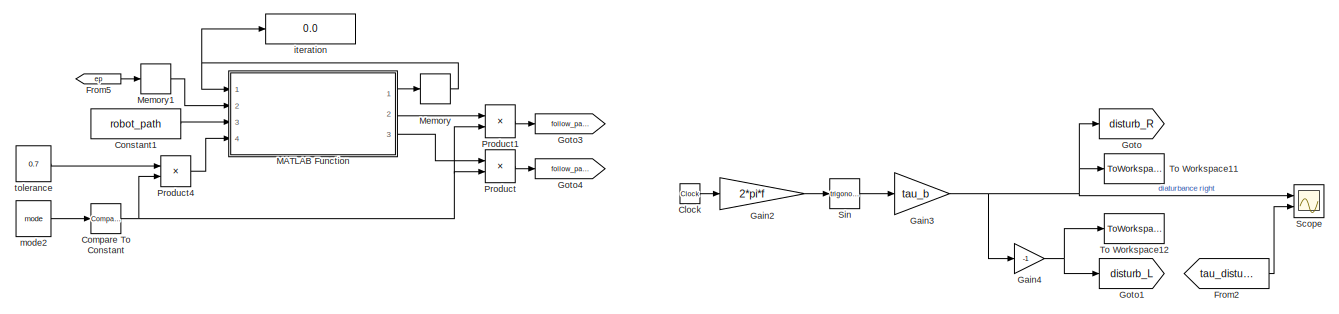
[diagram: root canvas - part 1/3, top center region]
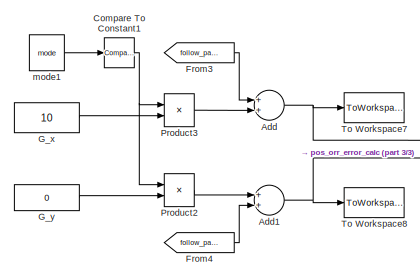
[diagram: root canvas - part 2/3, middle left region]
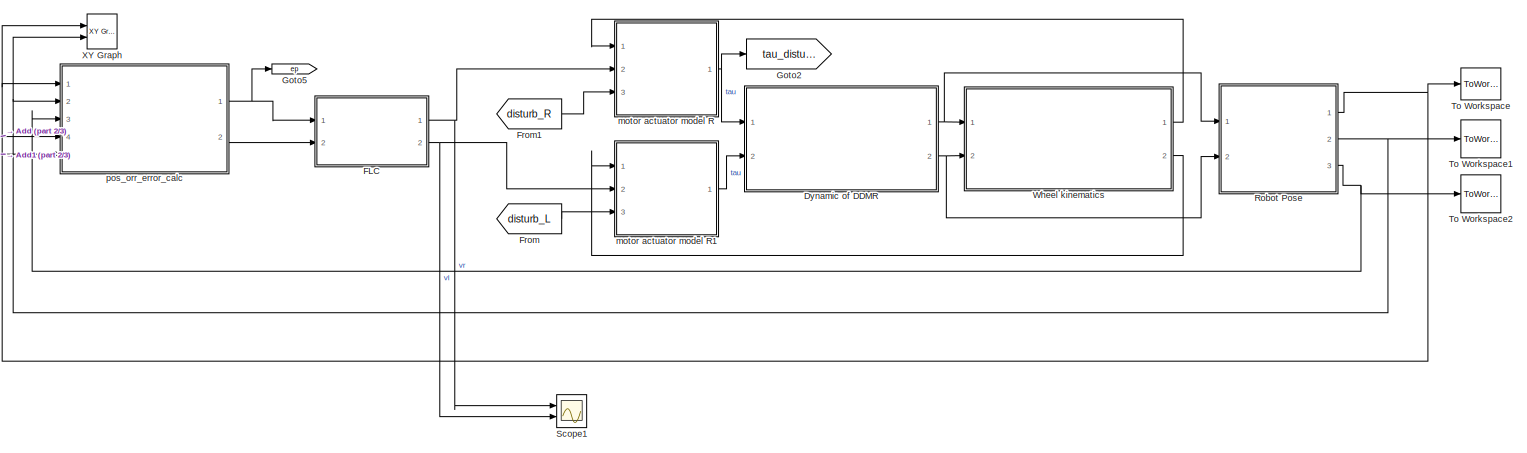
[diagram: root canvas - part 3/3, full width, bottom band]
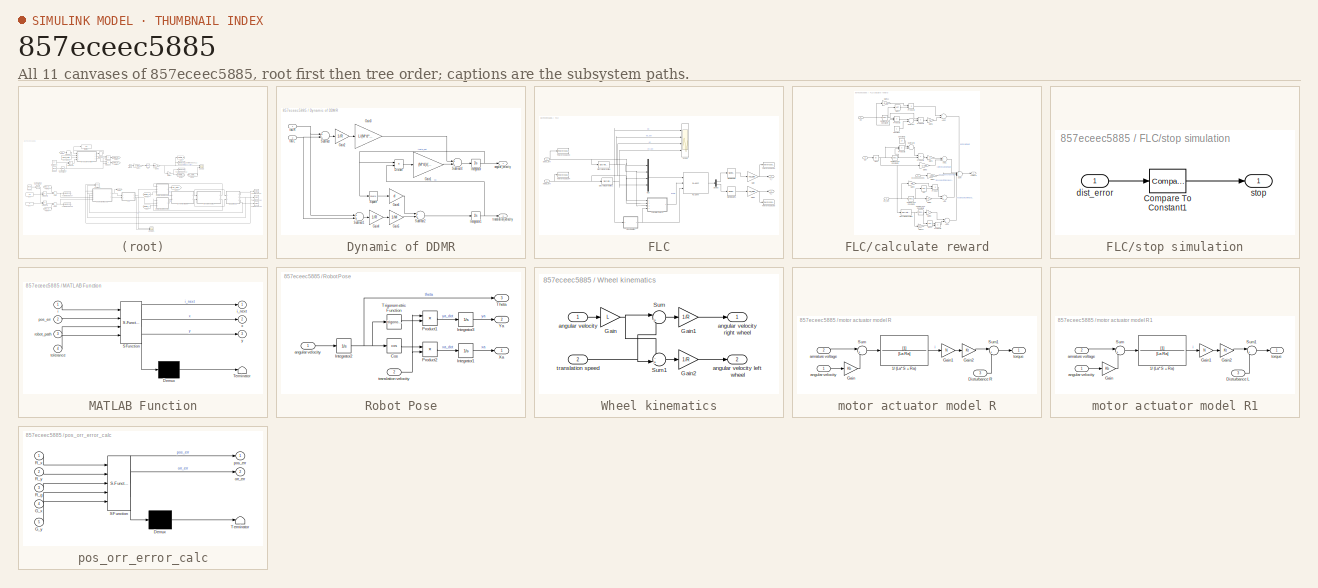
[diagram: thumbnail index - all 11 canvases of the model, root first then tree order]
MODEL slx_857eceec5885
KIND model
CONFIG AbsTol = auto
CONFIG EnableMultiTasking = off
CONFIG FixedStep = auto
CONFIG MaxStep = auto
CONFIG MinStep = auto
CONFIG RelTol = 1e-3
CONFIG SampleTimeConstraint = Unconstrained
CONFIG Solver = VariableStepAuto
CONFIG SolverName = VariableStepAuto
CONFIG StartTime = 0.0
CONFIG StopTime = TF
BLOCK [Sum] Add
  InputSameDT = off
  OutDataTypeStr = Inherit: Inherit via internal rule
  Ports = [2, 1]
  SaturateOnIntegerOverflow = off
BLOCK [Sum] Add1
  InputSameDT = off
  OutDataTypeStr = Inherit: Inherit via internal rule
  Ports = [2, 1]
  SaturateOnIntegerOverflow = off
BLOCK [Clock] Clock
BLOCK [Reference] Compare To Constant  REF=simulink/Logic and Bit
Operations/Compare
To Constant
  Ports = [1, 1]
  SourceBlock = simulink/Logic and Bit\nOperations/Compare\nTo Constant
  SourceProductBaseCode = SL
  SourceProductName = Simulink
  SourceType = Compare To Constant
BLOCK [Reference] Compare To Constant1  REF=simulink/Logic and Bit
Operations/Compare
To Constant
  Ports = [1, 1]
  SourceBlock = simulink/Logic and Bit\nOperations/Compare\nTo Constant
  SourceProductBaseCode = SL
  SourceProductName = Simulink
  SourceType = Compare To Constant
BLOCK [Constant] Constant1
  Value = robot_path
BLOCK [SubSystem] Dynamic of DDMR
  Ports = [2, 2]
  RequestExecContextInheritance = off
BLOCK [Product] Dynamic of DDMR/Divide7
  InputSameDT = off
  Inputs = **
  OutDataTypeStr = Inherit: Inherit via internal rule
  Ports = [2, 1]
  RndMeth = Floor
  SaturateOnIntegerOverflow = off
BLOCK [Gain] Dynamic of DDMR/Gain1
  Gain = (M*d)/(M*d*d+J)
  OutDataTypeStr = Inherit: Inherit via internal rule
  ParamDataTypeStr = Inherit: Inherit via internal rule
  SaturateOnIntegerOverflow = off
BLOCK [Gain] Dynamic of DDMR/Gain2
  Gain = 1/R
  OutDataTypeStr = Inherit: Inherit via internal rule
  ParamDataTypeStr = Inherit: Inherit via internal rule
  SaturateOnIntegerOverflow = off
BLOCK [Gain] Dynamic of DDMR/Gain3
  Gain = L/(M*d*d+J)
  OutDataTypeStr = Inherit: Inherit via internal rule
  ParamDataTypeStr = Inherit: Inherit via internal rule
  SaturateOnIntegerOverflow = off
BLOCK [Gain] Dynamic of DDMR/Gain4
  Gain = 1/R
  OutDataTypeStr = Inherit: Inherit via internal rule
  ParamDataTypeStr = Inherit: Inherit via internal rule
  SaturateOnIntegerOverflow = off
BLOCK [Gain] Dynamic of DDMR/Gain5
  Gain = 1/M
  OutDataTypeStr = Inherit: Inherit via internal rule
  ParamDataTypeStr = Inherit: Inherit via internal rule
  SaturateOnIntegerOverflow = off
BLOCK [Gain] Dynamic of DDMR/Gain6
  Gain = d
  OutDataTypeStr = Inherit: Inherit via internal rule
  ParamDataTypeStr = Inherit: Inherit via internal rule
  SaturateOnIntegerOverflow = off
BLOCK [Integrator] Dynamic of DDMR/Integrator
  Ports = [1, 1]
BLOCK [Integrator] Dynamic of DDMR/Integrator1
  Ports = [1, 1]
BLOCK [Math] Dynamic of DDMR/Square
  Operator = square
  Ports = [1, 1]
BLOCK [Sum] Dynamic of DDMR/Subtract
  InputSameDT = off
  Inputs = +-
  OutDataTypeStr = Inherit: Inherit via internal rule
  Ports = [2, 1]
  SaturateOnIntegerOverflow = off
BLOCK [Sum] Dynamic of DDMR/Subtract1
  InputSameDT = off
  OutDataTypeStr = Inherit: Inherit via internal rule
  Ports = [2, 1]
  SaturateOnIntegerOverflow = off
BLOCK [Sum] Dynamic of DDMR/Subtract2
  InputSameDT = off
  OutDataTypeStr = Inherit: Inherit via internal rule
  Ports = [2, 1]
  SaturateOnIntegerOverflow = off
BLOCK [Sum] Dynamic of DDMR/Subtract4
  InputSameDT = off
  Inputs = +-
  OutDataTypeStr = Inherit: Inherit via internal rule
  Ports = [2, 1]
  SaturateOnIntegerOverflow = off
BLOCK [Outport] Dynamic of DDMR/angular_velocity
  IconDisplay = Port number
BLOCK [Inport] Dynamic of DDMR/tau L
  IconDisplay = Port number
  Port = 2
BLOCK [Inport] Dynamic of DDMR/tau R
  IconDisplay = Port number
BLOCK [Outport] Dynamic of DDMR/translation_velocity
  IconDisplay = Port number
  Port = 2
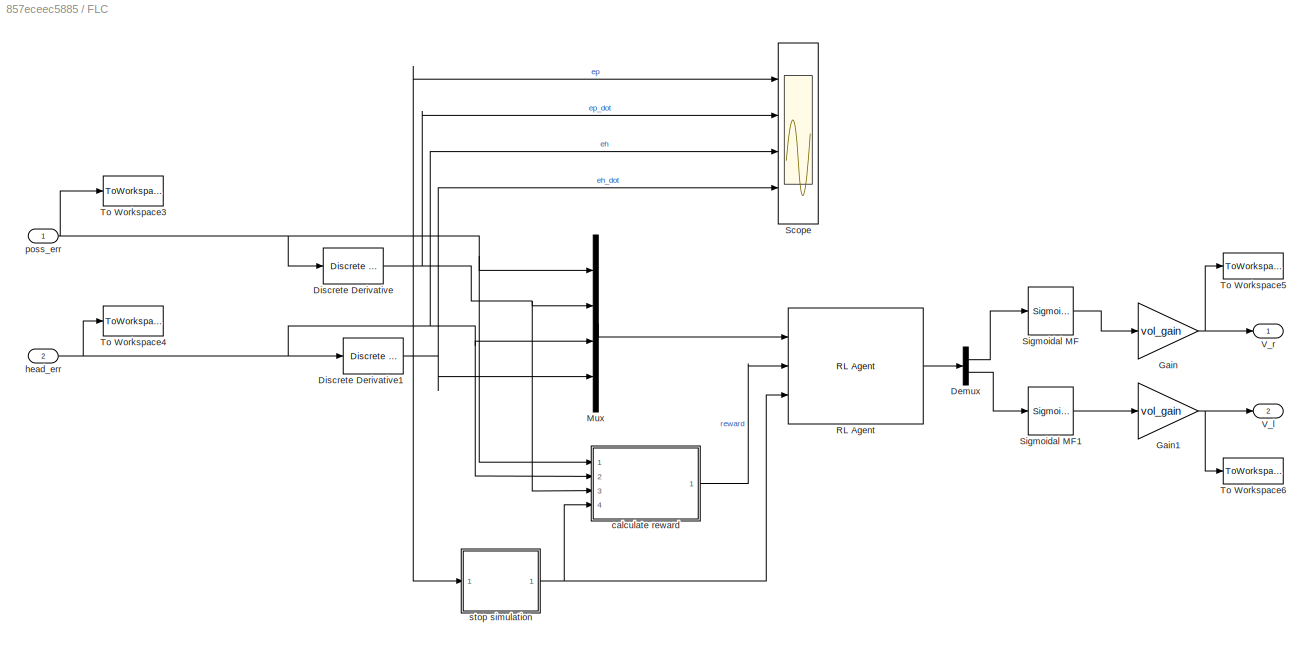
BLOCK [SubSystem] FLC
  Ports = [2, 2]
  RequestExecContextInheritance = off
BLOCK [Demux] FLC/Demux
  DisplayOption = bar
  Outputs = 2
  Ports = [1, 2]
BLOCK [Reference] FLC/Discrete Derivative  REF=simulink/Discrete/Discrete Derivative
  Ports = [1, 1]
  SourceBlock = simulink/Discrete/Discrete Derivative
  SourceProductBaseCode = SL
  SourceProductName = Simulink
  SourceType = Discrete Derivative
BLOCK [Reference] FLC/Discrete Derivative1  REF=simulink/Discrete/Discrete Derivative
  Ports = [1, 1]
  SourceBlock = simulink/Discrete/Discrete Derivative
  SourceProductBaseCode = SL
  SourceProductName = Simulink
  SourceType = Discrete Derivative
BLOCK [Gain] FLC/Gain
  Gain = vol_gain
  OutDataTypeStr = Inherit: Inherit via internal rule
  ParamDataTypeStr = Inherit: Inherit via internal rule
  SaturateOnIntegerOverflow = off
BLOCK [Gain] FLC/Gain1
  Gain = vol_gain
  OutDataTypeStr = Inherit: Inherit via internal rule
  ParamDataTypeStr = Inherit: Inherit via internal rule
  SaturateOnIntegerOverflow = off
BLOCK [Mux] FLC/Mux
  DisplayOption = bar
  Ports = [4, 1]
BLOCK [Reference] FLC/RL Agent  REF=rllib/RL Agent
  Ports = [3, 1]
  SourceBlock = rllib/RL Agent
  SourceProductBaseCode = RL
  SourceProductName = Reinforcement Learning Toolbox
  SourceType = RL Agent
BLOCK [Scope] FLC/Scope
  Floating = off
  NumInputPorts = 4
  Ports = [4]
  ScopeSpecificationString = Simulink.scopes.TimeScopeBlockCfg('CurrentConfiguration', extmgr.ConfigurationSet(extmgr.Configuration('Core','General UI',true),extmgr.Configuration('Core','Source UI',true),extmgr.Configuration('Sources','WiredSimulink',true,'DataLoggingVariableName','ScopeData1'),extmgr.Configuration('Visuals','Time Domain',true,'SerializedDisplays',{struct('MinYLimReal','-0.06885','MaxYLimReal','5.56321','YLab...<+3434ch>
BLOCK [Reference] FLC/Sigmoidal MF  REF=fuzblock/Membership   (lib defined in mdl_858b3b3e7478)
Functions/Sigmoidal MF
  Ports = [1, 1]
  SourceBlock = fuzblock/Membership \nFunctions/Sigmoidal MF
  SourceProductBaseCode = FL
  SourceProductName = Fuzzy Logic Toolbox
  SourceType = sigmf
BLOCK [Reference] FLC/Sigmoidal MF1  REF=fuzblock/Membership   (lib defined in mdl_858b3b3e7478)
Functions/Sigmoidal MF
  Ports = [1, 1]
  SourceBlock = fuzblock/Membership \nFunctions/Sigmoidal MF
  SourceProductBaseCode = FL
  SourceProductName = Fuzzy Logic Toolbox
  SourceType = sigmf
BLOCK [ToWorkspace] FLC/To Workspace3
  FixptAsFi = on
  MaxDataPoints = inf
  Ports = [1]
  SampleTime = -1
  VariableName = poser
BLOCK [ToWorkspace] FLC/To Workspace4
  FixptAsFi = on
  MaxDataPoints = inf
  Ports = [1]
  SampleTime = -1
  VariableName = orrer
BLOCK [ToWorkspace] FLC/To Workspace5
  FixptAsFi = on
  MaxDataPoints = inf
  Ports = [1]
  SampleTime = -1
  SaveFormat = Structure With Time
  VariableName = vr_flc
BLOCK [ToWorkspace] FLC/To Workspace6
  FixptAsFi = on
  MaxDataPoints = inf
  Ports = [1]
  SampleTime = -1
  SaveFormat = Structure With Time
  VariableName = vl_flc
BLOCK [Outport] FLC/V_l
  IconDisplay = Port number
  Port = 2
BLOCK [Outport] FLC/V_r
  IconDisplay = Port number
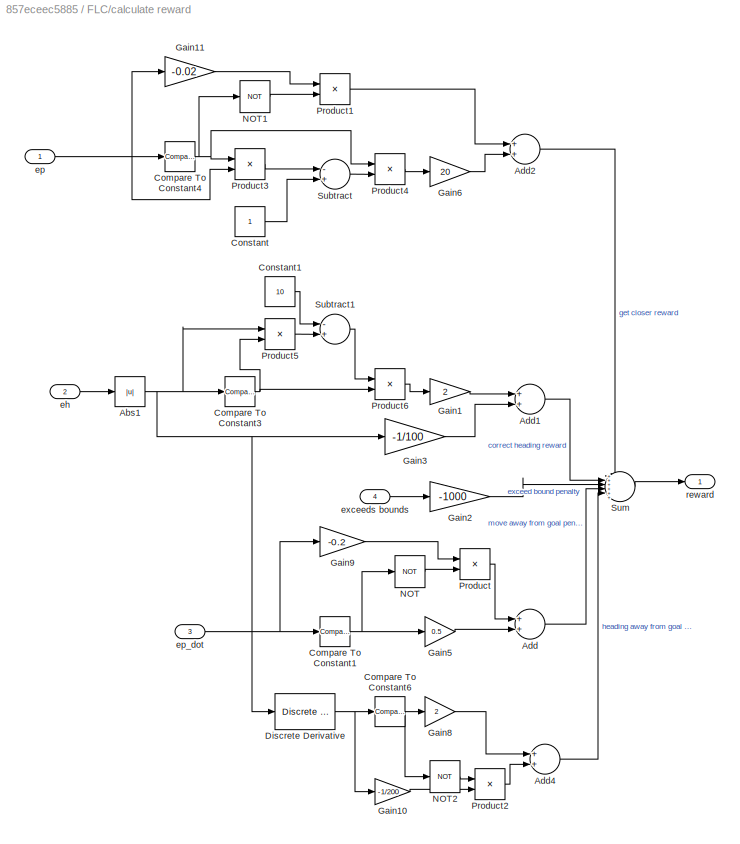
BLOCK [SubSystem] FLC/calculate reward
  Ports = [4, 1]
  RequestExecContextInheritance = off
BLOCK [Abs] FLC/calculate reward/Abs1
  SaturateOnIntegerOverflow = off
BLOCK [Sum] FLC/calculate reward/Add
  InputSameDT = off
  OutDataTypeStr = Inherit: Inherit via internal rule
  Ports = [2, 1]
  SaturateOnIntegerOverflow = off
BLOCK [Sum] FLC/calculate reward/Add1
  InputSameDT = off
  OutDataTypeStr = Inherit: Inherit via internal rule
  Ports = [2, 1]
  SaturateOnIntegerOverflow = off
BLOCK [Sum] FLC/calculate reward/Add2
  InputSameDT = off
  OutDataTypeStr = Inherit: Inherit via internal rule
  Ports = [2, 1]
  SaturateOnIntegerOverflow = off
BLOCK [Sum] FLC/calculate reward/Add4
  InputSameDT = off
  OutDataTypeStr = Inherit: Inherit via internal rule
  Ports = [2, 1]
  SaturateOnIntegerOverflow = off
BLOCK [Reference] FLC/calculate reward/Compare To Constant1  REF=simulink/Logic and Bit
Operations/Compare
To Constant
  Ports = [1, 1]
  SourceBlock = simulink/Logic and Bit\nOperations/Compare\nTo Constant
  SourceProductBaseCode = SL
  SourceProductName = Simulink
  SourceType = Compare To Constant
BLOCK [Reference] FLC/calculate reward/Compare To Constant3  REF=simulink/Logic and Bit
Operations/Compare
To Constant
  Ports = [1, 1]
  SourceBlock = simulink/Logic and Bit\nOperations/Compare\nTo Constant
  SourceProductBaseCode = SL
  SourceProductName = Simulink
  SourceType = Compare To Constant
BLOCK [Reference] FLC/calculate reward/Compare To Constant4  REF=simulink/Logic and Bit
Operations/Compare
To Constant
  Ports = [1, 1]
  SourceBlock = simulink/Logic and Bit\nOperations/Compare\nTo Constant
  SourceProductBaseCode = SL
  SourceProductName = Simulink
  SourceType = Compare To Constant
BLOCK [Reference] FLC/calculate reward/Compare To Constant6  REF=simulink/Logic and Bit
Operations/Compare
To Constant
  Ports = [1, 1]
  SourceBlock = simulink/Logic and Bit\nOperations/Compare\nTo Constant
  SourceProductBaseCode = SL
  SourceProductName = Simulink
  SourceType = Compare To Constant
BLOCK [Constant] FLC/calculate reward/Constant
BLOCK [Constant] FLC/calculate reward/Constant1
  Value = 10
BLOCK [Reference] FLC/calculate reward/Discrete Derivative  REF=simulink/Quick Insert/Discrete/Discrete Derivative
  Ports = [1, 1]
  SourceBlock = simulink/Quick Insert/Discrete/Discrete Derivative
  SourceProductBaseCode = SL
  SourceProductName = Simulink
  SourceType = Discrete Derivative
BLOCK [Gain] FLC/calculate reward/Gain1
  Gain = 2
  OutDataTypeStr = Inherit: Inherit via internal rule
  ParamDataTypeStr = Inherit: Inherit via internal rule
  SaturateOnIntegerOverflow = off
BLOCK [Gain] FLC/calculate reward/Gain10
  Gain = -1/200
  OutDataTypeStr = Inherit: Inherit via internal rule
  ParamDataTypeStr = Inherit: Inherit via internal rule
  SaturateOnIntegerOverflow = off
BLOCK [Gain] FLC/calculate reward/Gain11
  Gain = -0.02
  OutDataTypeStr = Inherit: Inherit via internal rule
  ParamDataTypeStr = Inherit: Inherit via internal rule
  SaturateOnIntegerOverflow = off
BLOCK [Gain] FLC/calculate reward/Gain2
  Gain = -1000
  OutDataTypeStr = Inherit: Inherit via internal rule
  ParamDataTypeStr = Inherit: Inherit via internal rule
  SaturateOnIntegerOverflow = off
BLOCK [Gain] FLC/calculate reward/Gain3
  Gain = -1/100
  OutDataTypeStr = Inherit: Inherit via internal rule
  ParamDataTypeStr = Inherit: Inherit via internal rule
  SaturateOnIntegerOverflow = off
BLOCK [Gain] FLC/calculate reward/Gain5
  Gain = 0.5
  OutDataTypeStr = Inherit: Inherit via internal rule
  ParamDataTypeStr = Inherit: Inherit via internal rule
  SaturateOnIntegerOverflow = off
BLOCK [Gain] FLC/calculate reward/Gain6
  Gain = 20
  OutDataTypeStr = Inherit: Inherit via internal rule
  ParamDataTypeStr = Inherit: Inherit via internal rule
  SaturateOnIntegerOverflow = off
BLOCK [Gain] FLC/calculate reward/Gain8
  Gain = 2
  OutDataTypeStr = Inherit: Inherit via internal rule
  ParamDataTypeStr = Inherit: Inherit via internal rule
  SaturateOnIntegerOverflow = off
BLOCK [Gain] FLC/calculate reward/Gain9
  Gain = -0.2
  OutDataTypeStr = Inherit: Inherit via internal rule
  ParamDataTypeStr = Inherit: Inherit via internal rule
  SaturateOnIntegerOverflow = off
BLOCK [Logic] FLC/calculate reward/NOT
  AllPortsSameDT = off
  IconShape = distinctive
  Operator = NOT
  OutDataTypeStr = boolean
  Ports = [1, 1]
BLOCK [Logic] FLC/calculate reward/NOT1
  AllPortsSameDT = off
  IconShape = distinctive
  Operator = NOT
  OutDataTypeStr = boolean
  Ports = [1, 1]
BLOCK [Logic] FLC/calculate reward/NOT2
  AllPortsSameDT = off
  IconShape = distinctive
  Operator = NOT
  OutDataTypeStr = boolean
  Ports = [1, 1]
BLOCK [Product] FLC/calculate reward/Product
  InputSameDT = off
  OutDataTypeStr = Inherit: Inherit via internal rule
  Ports = [2, 1]
  RndMeth = Floor
  SaturateOnIntegerOverflow = off
BLOCK [Product] FLC/calculate reward/Product1
  InputSameDT = off
  OutDataTypeStr = Inherit: Inherit via internal rule
  Ports = [2, 1]
  RndMeth = Floor
  SaturateOnIntegerOverflow = off
BLOCK [Product] FLC/calculate reward/Product2
  InputSameDT = off
  OutDataTypeStr = Inherit: Inherit via internal rule
  Ports = [2, 1]
  RndMeth = Floor
  SaturateOnIntegerOverflow = off
BLOCK [Product] FLC/calculate reward/Product3
  InputSameDT = off
  OutDataTypeStr = Inherit: Inherit via internal rule
  Ports = [2, 1]
  RndMeth = Floor
  SaturateOnIntegerOverflow = off
BLOCK [Product] FLC/calculate reward/Product4
  InputSameDT = off
  OutDataTypeStr = Inherit: Inherit via internal rule
  Ports = [2, 1]
  RndMeth = Floor
  SaturateOnIntegerOverflow = off
BLOCK [Product] FLC/calculate reward/Product5
  InputSameDT = off
  OutDataTypeStr = Inherit: Inherit via internal rule
  Ports = [2, 1]
  RndMeth = Floor
  SaturateOnIntegerOverflow = off
BLOCK [Product] FLC/calculate reward/Product6
  InputSameDT = off
  OutDataTypeStr = Inherit: Inherit via internal rule
  Ports = [2, 1]
  RndMeth = Floor
  SaturateOnIntegerOverflow = off
BLOCK [Sum] FLC/calculate reward/Subtract
  InputSameDT = off
  Inputs = -+
  OutDataTypeStr = Inherit: Inherit via internal rule
  Ports = [2, 1]
  SaturateOnIntegerOverflow = off
BLOCK [Sum] FLC/calculate reward/Subtract1
  InputSameDT = off
  Inputs = -+
  OutDataTypeStr = Inherit: Inherit via internal rule
  Ports = [2, 1]
  SaturateOnIntegerOverflow = off
BLOCK [Sum] FLC/calculate reward/Sum
  IconShape = round
  InputSameDT = off
  Inputs = ++++++
  OutDataTypeStr = Inherit: Inherit via internal rule
  Ports = [6, 1]
  SaturateOnIntegerOverflow = off
BLOCK [Inport] FLC/calculate reward/eh
  IconDisplay = Port number
  Port = 2
BLOCK [Inport] FLC/calculate reward/ep
  IconDisplay = Port number
BLOCK [Inport] FLC/calculate reward/ep_dot
  IconDisplay = Port number
  Port = 3
BLOCK [Inport] FLC/calculate reward/exceeds bounds
  IconDisplay = Port number
  Port = 4
BLOCK [Outport] FLC/calculate reward/reward
  IconDisplay = Port number
BLOCK [Inport] FLC/head_err
  IconDisplay = Port number
  Port = 2
BLOCK [Inport] FLC/poss_err
  IconDisplay = Port number
BLOCK [SubSystem] FLC/stop simulation
  Ports = [1, 1]
  RequestExecContextInheritance = off
BLOCK [Reference] FLC/stop simulation/Compare To Constant1  REF=simulink/Logic and Bit
Operations/Compare
To Constant
  Ports = [1, 1]
  SourceBlock = simulink/Logic and Bit\nOperations/Compare\nTo Constant
  SourceProductBaseCode = SL
  SourceProductName = Simulink
  SourceType = Compare To Constant
BLOCK [Inport] FLC/stop simulation/dist_error
  IconDisplay = Port number
BLOCK [Outport] FLC/stop simulation/stop
  IconDisplay = Port number
BLOCK [From] From
  GotoTag = disturb_L
BLOCK [From] From1
  GotoTag = disturb_R
BLOCK [From] From2
  GotoTag = tau_disturbed
BLOCK [From] From3
  GotoTag = follow_path_x
BLOCK [From] From4
  GotoTag = follow_path_y
BLOCK [From] From5
  GotoTag = ep
BLOCK [Constant] G_x
  Value = 10
BLOCK [Constant] G_y
  Value = 0
BLOCK [Gain] Gain2
  Gain = 2*pi*f
  OutDataTypeStr = Inherit: Inherit via internal rule
  ParamDataTypeStr = Inherit: Inherit via internal rule
  SaturateOnIntegerOverflow = off
BLOCK [Gain] Gain3
  Gain = tau_b
  OutDataTypeStr = Inherit: Inherit via internal rule
  ParamDataTypeStr = Inherit: Inherit via internal rule
  SaturateOnIntegerOverflow = off
BLOCK [Gain] Gain4
  Gain = -1
  OutDataTypeStr = Inherit: Inherit via internal rule
  ParamDataTypeStr = Inherit: Inherit via internal rule
  SaturateOnIntegerOverflow = off
BLOCK [Goto] Goto
  GotoTag = disturb_R
BLOCK [Goto] Goto1
  GotoTag = disturb_L
BLOCK [Goto] Goto2
  GotoTag = tau_disturbed
BLOCK [Goto] Goto3
  GotoTag = follow_path_x
BLOCK [Goto] Goto4
  GotoTag = follow_path_y
BLOCK [Goto] Goto5
  GotoTag = ep
BLOCK [SubSystem] MATLAB Function
  ErrorFcn = Stateflow.Translate.translate
  PermitHierarchicalResolution = ExplicitOnly
  Ports = [4, 3]
  RequestExecContextInheritance = off
  SFBlockType = MATLAB Function
  TreatAsAtomicUnit = on
BLOCK [Demux] MATLAB Function/ Demux 
  Outputs = 1
  Ports = [1, 1]
BLOCK [S-Function] MATLAB Function/ SFunction 
  EnableBusSupport = on
  FunctionName = sf_sfun
  PortCounts = [4 4]
  Ports = [4, 4]
  SFcnIsStateOwnerBlock = off
  SFunctionDeploymentMode = off
  Tag = Stateflow S-Function model 3
BLOCK [Terminator] MATLAB Function/ Terminator 
BLOCK [Inport] MATLAB Function/i
  IconDisplay = Port number
BLOCK [Outport] MATLAB Function/i_next
  IconDisplay = Port number
BLOCK [Inport] MATLAB Function/pos_err
  IconDisplay = Port number
  Port = 2
BLOCK [Inport] MATLAB Function/robot_path
  IconDisplay = Port number
  Port = 3
BLOCK [Inport] MATLAB Function/tolerance
  IconDisplay = Port number
  Port = 4
BLOCK [Outport] MATLAB Function/x
  IconDisplay = Port number
  Port = 2
BLOCK [Outport] MATLAB Function/y
  IconDisplay = Port number
  Port = 3
BLOCK [Memory] Memory
  InitialCondition = 1
BLOCK [Memory] Memory1
  InitialCondition = 1
BLOCK [Product] Product
  InputSameDT = off
  OutDataTypeStr = Inherit: Inherit via internal rule
  Ports = [2, 1]
  RndMeth = Floor
  SaturateOnIntegerOverflow = off
BLOCK [Product] Product1
  InputSameDT = off
  OutDataTypeStr = Inherit: Inherit via internal rule
  Ports = [2, 1]
  RndMeth = Floor
  SaturateOnIntegerOverflow = off
BLOCK [Product] Product2
  InputSameDT = off
  OutDataTypeStr = Inherit: Inherit via internal rule
  Ports = [2, 1]
  RndMeth = Floor
  SaturateOnIntegerOverflow = off
BLOCK [Product] Product3
  InputSameDT = off
  OutDataTypeStr = Inherit: Inherit via internal rule
  Ports = [2, 1]
  RndMeth = Floor
  SaturateOnIntegerOverflow = off
BLOCK [Product] Product4
  InputSameDT = off
  OutDataTypeStr = Inherit: Inherit via internal rule
  Ports = [2, 1]
  RndMeth = Floor
  SaturateOnIntegerOverflow = off
BLOCK [SubSystem] Robot Pose
  Ports = [2, 3]
  RequestExecContextInheritance = off
BLOCK [Trigonometry] Robot Pose/Cos
  Operator = cos
  Ports = [1, 1]
BLOCK [Integrator] Robot Pose/Integrator1
  InitialCondition = xa_init
  Ports = [1, 1]
BLOCK [Integrator] Robot Pose/Integrator2
  InitialCondition = theta_init
  Ports = [1, 1]
BLOCK [Integrator] Robot Pose/Integrator3
  InitialCondition = ya_init
  Ports = [1, 1]
BLOCK [Product] Robot Pose/Product1
  InputSameDT = off
  Inputs = **
  OutDataTypeStr = Inherit: Inherit via internal rule
  Ports = [2, 1]
  RndMeth = Floor
  SaturateOnIntegerOverflow = off
BLOCK [Product] Robot Pose/Product2
  InputSameDT = off
  Inputs = **
  OutDataTypeStr = Inherit: Inherit via internal rule
  Ports = [2, 1]
  RndMeth = Floor
  SaturateOnIntegerOverflow = off
BLOCK [Outport] Robot Pose/Theta
  IconDisplay = Port number
  Port = 3
BLOCK [Trigonometry] Robot Pose/Trigonometric Function
  Ports = [1, 1]
BLOCK [Outport] Robot Pose/Xa
  IconDisplay = Port number
BLOCK [Outport] Robot Pose/Ya
  IconDisplay = Port number
  Port = 2
BLOCK [Inport] Robot Pose/angular velocity
  IconDisplay = Port number
BLOCK [Inport] Robot Pose/translation velocity
  IconDisplay = Port number
  Port = 2
BLOCK [Scope] Scope
  Floating = off
  NumInputPorts = 2
  Ports = [2]
  ScopeSpecificationString = Simulink.scopes.TimeScopeBlockCfg('CurrentConfiguration', extmgr.ConfigurationSet(extmgr.Configuration('Core','General UI',true),extmgr.Configuration('Core','Source UI',true),extmgr.Configuration('Sources','WiredSimulink',true),extmgr.Configuration('Visuals','Time Domain',true,'SerializedDisplays',{struct('MinYLimReal','-5.32297','MaxYLimReal','5.8515','YLabelReal','','MinYLimMag','0.00000','MaxYL...<+1416ch>
BLOCK [Scope] Scope1
  Floating = off
  NumInputPorts = 2
  Ports = [2]
  ScopeSpecificationString = Simulink.scopes.TimeScopeBlockCfg('CurrentConfiguration', extmgr.ConfigurationSet(extmgr.Configuration('Core','General UI',true),extmgr.Configuration('Core','Source UI',true),extmgr.Configuration('Sources','WiredSimulink',true,'DataLoggingVariableName','ScopeData1'),extmgr.Configuration('Visuals','Time Domain',true,'SerializedDisplays',{struct('MinYLimReal','-13.08811','MaxYLimReal','13.08811','YL...<+2134ch>
BLOCK [Trigonometry] Sin
  Ports = [1, 1]
BLOCK [ToWorkspace] To Workspace
  MaxDataPoints = inf
  Ports = [1]
  SampleTime = -1
  Save2DSignal = 2-D array (concatenate along first dimension)
  VariableName = xa
BLOCK [ToWorkspace] To Workspace1
  MaxDataPoints = inf
  Ports = [1]
  SampleTime = -1
  Save2DSignal = 2-D array (concatenate along first dimension)
  VariableName = ya
BLOCK [ToWorkspace] To Workspace11
  FixptAsFi = on
  MaxDataPoints = inf
  Ports = [1]
  SampleTime = -1
  VariableName = sine_R
BLOCK [ToWorkspace] To Workspace12
  FixptAsFi = on
  MaxDataPoints = inf
  Ports = [1]
  SampleTime = -1
  VariableName = sine_L
BLOCK [ToWorkspace] To Workspace2
  MaxDataPoints = inf
  Ports = [1]
  SampleTime = -1
  Save2DSignal = 2-D array (concatenate along first dimension)
  VariableName = theta
BLOCK [ToWorkspace] To Workspace7
  FixptAsFi = on
  MaxDataPoints = inf
  Ports = [1]
  SampleTime = -1
  VariableName = G_xt
BLOCK [ToWorkspace] To Workspace8
  FixptAsFi = on
  MaxDataPoints = inf
  Ports = [1]
  SampleTime = -1
  VariableName = G_yt
BLOCK [SubSystem] Wheel kinematics
  Ports = [2, 2]
  RequestExecContextInheritance = off
BLOCK [Gain] Wheel kinematics/Gain
  Gain = L
  OutDataTypeStr = Inherit: Inherit via internal rule
  ParamDataTypeStr = Inherit: Inherit via internal rule
  SaturateOnIntegerOverflow = off
BLOCK [Gain] Wheel kinematics/Gain1
  Gain = 1/R
  OutDataTypeStr = Inherit: Inherit via internal rule
  ParamDataTypeStr = Inherit: Inherit via internal rule
  SaturateOnIntegerOverflow = off
BLOCK [Gain] Wheel kinematics/Gain2
  Gain = 1/R
  OutDataTypeStr = Inherit: Inherit via internal rule
  ParamDataTypeStr = Inherit: Inherit via internal rule
  SaturateOnIntegerOverflow = off
BLOCK [Sum] Wheel kinematics/Sum
  IconShape = round
  InputSameDT = off
  Inputs = |++
  OutDataTypeStr = Inherit: Inherit via internal rule
  Ports = [2, 1]
  SaturateOnIntegerOverflow = off
BLOCK [Sum] Wheel kinematics/Sum1
  IconShape = round
  InputSameDT = off
  Inputs = -+|
  OutDataTypeStr = Inherit: Inherit via internal rule
  Ports = [2, 1]
  SaturateOnIntegerOverflow = off
BLOCK [Inport] Wheel kinematics/angular velocity
  IconDisplay = Port number
BLOCK [Outport] Wheel kinematics/angular velocity left wheel
  IconDisplay = Port number
  Port = 2
BLOCK [Outport] Wheel kinematics/angular velocity right wheel
  IconDisplay = Port number
BLOCK [Inport] Wheel kinematics/translation speed
  IconDisplay = Port number
  Port = 2
BLOCK [Reference] XY Graph  REF=simulink/Sinks/XY Graph
  Ports = [2]
  SourceBlock = simulink/Sinks/XY Graph
  SourceProductBaseCode = SL
  SourceProductName = Simulink
  SourceType = XY scope.
BLOCK [Display] iteration
  Decimation = 1
  Ports = [1]
BLOCK [Constant] mode1
  Value = mode
BLOCK [Constant] mode2
  Value = mode
BLOCK [SubSystem] motor actuator model R
  Ports = [3, 1]
  RequestExecContextInheritance = off
BLOCK [TransferFcn] motor actuator model R/1// (La*S + Ra)
  Denominator = [La Ra]
BLOCK [Inport] motor actuator model R/Disturbance R
  IconDisplay = Port number
  Port = 3
BLOCK [Gain] motor actuator model R/Gain
  Gain = Kb
  OutDataTypeStr = Inherit: Inherit via internal rule
  ParamDataTypeStr = Inherit: Inherit via internal rule
  SaturateOnIntegerOverflow = off
BLOCK [Gain] motor actuator model R/Gain1
  Gain = N
  OutDataTypeStr = Inherit: Inherit via internal rule
  ParamDataTypeStr = Inherit: Inherit via internal rule
  SaturateOnIntegerOverflow = off
BLOCK [Gain] motor actuator model R/Gain2
  Gain = Kt
  OutDataTypeStr = Inherit: Inherit via internal rule
  ParamDataTypeStr = Inherit: Inherit via internal rule
  SaturateOnIntegerOverflow = off
BLOCK [Sum] motor actuator model R/Sum
  IconShape = round
  InputSameDT = off
  Inputs = |+-
  OutDataTypeStr = Inherit: Inherit via internal rule
  Ports = [2, 1]
  SaturateOnIntegerOverflow = off
BLOCK [Sum] motor actuator model R/Sum1
  IconShape = round
  InputSameDT = off
  Inputs = |++
  OutDataTypeStr = Inherit: Inherit via internal rule
  Ports = [2, 1]
  SaturateOnIntegerOverflow = off
BLOCK [Inport] motor actuator model R/angular velocity
  IconDisplay = Port number
BLOCK [Inport] motor actuator model R/armature voltage
  IconDisplay = Port number
  Port = 2
BLOCK [Outport] motor actuator model R/torque
  IconDisplay = Port number
BLOCK [SubSystem] motor actuator model R1
  Ports = [3, 1]
  RequestExecContextInheritance = off
BLOCK [TransferFcn] motor actuator model R1/1// (La*S + Ra)
  Denominator = [La Ra]
BLOCK [Inport] motor actuator model R1/Disturbance L
  IconDisplay = Port number
  Port = 3
BLOCK [Gain] motor actuator model R1/Gain
  Gain = Kb
  OutDataTypeStr = Inherit: Inherit via internal rule
  ParamDataTypeStr = Inherit: Inherit via internal rule
  SaturateOnIntegerOverflow = off
BLOCK [Gain] motor actuator model R1/Gain1
  Gain = N
  OutDataTypeStr = Inherit: Inherit via internal rule
  ParamDataTypeStr = Inherit: Inherit via internal rule
  SaturateOnIntegerOverflow = off
BLOCK [Gain] motor actuator model R1/Gain2
  Gain = Kt
  OutDataTypeStr = Inherit: Inherit via internal rule
  ParamDataTypeStr = Inherit: Inherit via internal rule
  SaturateOnIntegerOverflow = off
BLOCK [Sum] motor actuator model R1/Sum
  IconShape = round
  InputSameDT = off
  Inputs = |+-
  OutDataTypeStr = Inherit: Inherit via internal rule
  Ports = [2, 1]
  SaturateOnIntegerOverflow = off
BLOCK [Sum] motor actuator model R1/Sum1
  IconShape = round
  InputSameDT = off
  Inputs = |++
  OutDataTypeStr = Inherit: Inherit via internal rule
  Ports = [2, 1]
  SaturateOnIntegerOverflow = off
BLOCK [Inport] motor actuator model R1/angular velocity
  IconDisplay = Port number
BLOCK [Inport] motor actuator model R1/armature voltage
  IconDisplay = Port number
  Port = 2
BLOCK [Outport] motor actuator model R1/torque
  IconDisplay = Port number
BLOCK [SubSystem] pos_orr_error_calc
  ErrorFcn = Stateflow.Translate.translate
  PermitHierarchicalResolution = ExplicitOnly
  Ports = [5, 2]
  RequestExecContextInheritance = off
  SFBlockType = MATLAB Function
  TreatAsAtomicUnit = on
BLOCK [Demux] pos_orr_error_calc/ Demux 
  Outputs = 1
  Ports = [1, 1]
BLOCK [S-Function] pos_orr_error_calc/ SFunction 
  EnableBusSupport = on
  FunctionName = sf_sfun
  PortCounts = [5 3]
  Ports = [5, 3]
  SFcnIsStateOwnerBlock = off
  SFunctionDeploymentMode = off
  Tag = Stateflow S-Function model 1
BLOCK [Terminator] pos_orr_error_calc/ Terminator 
BLOCK [Inport] pos_orr_error_calc/G_x
  IconDisplay = Port number
  Port = 4
BLOCK [Inport] pos_orr_error_calc/G_y
  IconDisplay = Port number
  Port = 5
BLOCK [Inport] pos_orr_error_calc/R_g
  IconDisplay = Port number
  Port = 3
BLOCK [Inport] pos_orr_error_calc/R_x
  IconDisplay = Port number
BLOCK [Inport] pos_orr_error_calc/R_y
  IconDisplay = Port number
  Port = 2
BLOCK [Outport] pos_orr_error_calc/orr_err
  IconDisplay = Port number
  Port = 2
BLOCK [Outport] pos_orr_error_calc/pos_err
  IconDisplay = Port number
BLOCK [Constant] tolerance
  Value = 0.7
NET Add1:1 -> To Workspace8:1, pos_orr_error_calc:5
NET Add:1 -> To Workspace7:1, pos_orr_error_calc:4
LINE Clock:1 -> Gain2:1
NET Compare To Constant1:1 -> Product2:1, Product3:1
NET Compare To Constant:1 -> Product1:2, Product4:2, Product:2
LINE Constant1:1 -> MATLAB Function:3
LINE Dynamic of DDMR/Divide7:1 -> Dynamic of DDMR/Gain1:1
LINE Dynamic of DDMR/Gain1:1 -> Dynamic of DDMR/Subtract4:2
LINE Dynamic of DDMR/Gain2:1 -> Dynamic of DDMR/Gain3:1
LINE Dynamic of DDMR/Gain3:1 -> Dynamic of DDMR/Subtract4:1
LINE Dynamic of DDMR/Gain4:1 -> Dynamic of DDMR/Gain5:1
LINE Dynamic of DDMR/Gain5:1 -> Dynamic of DDMR/Subtract2:2
LINE Dynamic of DDMR/Gain6:1 -> Dynamic of DDMR/Subtract2:1
NET Dynamic of DDMR/Integrator1:1 -> Dynamic of DDMR/Divide7:2, Dynamic of DDMR/translation_velocity:1
NET Dynamic of DDMR/Integrator:1 -> Dynamic of DDMR/Divide7:1, Dynamic of DDMR/Square:1, Dynamic of DDMR/angular_velocity:1
LINE Dynamic of DDMR/Square:1 -> Dynamic of DDMR/Gain6:1
LINE Dynamic of DDMR/Subtract1:1 -> Dynamic of DDMR/Gain4:1
LINE Dynamic of DDMR/Subtract2:1 -> Dynamic of DDMR/Integrator1:1
LINE Dynamic of DDMR/Subtract4:1 -> Dynamic of DDMR/Integrator:1
LINE Dynamic of DDMR/Subtract:1 -> Dynamic of DDMR/Gain2:1
NET Dynamic of DDMR/tau L:1 -> Dynamic of DDMR/Subtract1:2, Dynamic of DDMR/Subtract:2
NET Dynamic of DDMR/tau R:1 -> Dynamic of DDMR/Subtract1:1, Dynamic of DDMR/Subtract:1
NET Dynamic of DDMR:1 -> Robot Pose:1, Wheel kinematics:1
NET Dynamic of DDMR:2 -> Robot Pose:2, Wheel kinematics:2
LINE FLC/Demux:1 -> FLC/Sigmoidal MF:1
LINE FLC/Demux:2 -> FLC/Sigmoidal MF1:1
NET FLC/Discrete Derivative1:1 -> FLC/Mux:4, FLC/Scope:4
NET FLC/Discrete Derivative:1 -> FLC/Mux:2, FLC/Scope:2, FLC/calculate reward:3
NET FLC/Gain1:1 -> FLC/To Workspace6:1, FLC/V_l:1
NET FLC/Gain:1 -> FLC/To Workspace5:1, FLC/V_r:1
LINE FLC/Mux:1 -> FLC/RL Agent:1
LINE FLC/RL Agent:1 -> FLC/Demux:1
LINE FLC/Sigmoidal MF1:1 -> FLC/Gain1:1
LINE FLC/Sigmoidal MF:1 -> FLC/Gain:1
NET FLC/calculate reward/Abs1:1 -> FLC/calculate reward/Compare To Constant3:1, FLC/calculate reward/Discrete Derivative:1, FLC/calculate reward/Gain3:1, FLC/calculate reward/Product5:1
LINE FLC/calculate reward/Add1:1 -> FLC/calculate reward/Sum:2
LINE FLC/calculate reward/Add2:1 -> FLC/calculate reward/Sum:1
LINE FLC/calculate reward/Add4:1 -> FLC/calculate reward/Sum:5
LINE FLC/calculate reward/Add:1 -> FLC/calculate reward/Sum:4
NET FLC/calculate reward/Compare To Constant1:1 -> FLC/calculate reward/Gain5:1, FLC/calculate reward/NOT:1
NET FLC/calculate reward/Compare To Constant3:1 -> FLC/calculate reward/Product5:2, FLC/calculate reward/Product6:2
NET FLC/calculate reward/Compare To Constant4:1 -> FLC/calculate reward/NOT1:1, FLC/calculate reward/Product3:1, FLC/calculate reward/Product4:1
NET FLC/calculate reward/Compare To Constant6:1 -> FLC/calculate reward/Gain8:1, FLC/calculate reward/NOT2:1
LINE FLC/calculate reward/Constant1:1 -> FLC/calculate reward/Subtract1:1
LINE FLC/calculate reward/Constant:1 -> FLC/calculate reward/Subtract:2
NET FLC/calculate reward/Discrete Derivative:1 -> FLC/calculate reward/Compare To Constant6:1, FLC/calculate reward/Gain10:1
LINE FLC/calculate reward/Gain10:1 -> FLC/calculate reward/Product2:2
LINE FLC/calculate reward/Gain11:1 -> FLC/calculate reward/Product1:1
LINE FLC/calculate reward/Gain1:1 -> FLC/calculate reward/Add1:1
LINE FLC/calculate reward/Gain2:1 -> FLC/calculate reward/Sum:3
LINE FLC/calculate reward/Gain3:1 -> FLC/calculate reward/Add1:2
LINE FLC/calculate reward/Gain5:1 -> FLC/calculate reward/Add:2
LINE FLC/calculate reward/Gain6:1 -> FLC/calculate reward/Add2:2
LINE FLC/calculate reward/Gain8:1 -> FLC/calculate reward/Add4:1
LINE FLC/calculate reward/Gain9:1 -> FLC/calculate reward/Product:1
LINE FLC/calculate reward/NOT1:1 -> FLC/calculate reward/Product1:2
LINE FLC/calculate reward/NOT2:1 -> FLC/calculate reward/Product2:1
LINE FLC/calculate reward/NOT:1 -> FLC/calculate reward/Product:2
LINE FLC/calculate reward/Product1:1 -> FLC/calculate reward/Add2:1
LINE FLC/calculate reward/Product2:1 -> FLC/calculate reward/Add4:2
LINE FLC/calculate reward/Product3:1 -> FLC/calculate reward/Subtract:1
LINE FLC/calculate reward/Product4:1 -> FLC/calculate reward/Gain6:1
LINE FLC/calculate reward/Product5:1 -> FLC/calculate reward/Subtract1:2
LINE FLC/calculate reward/Product6:1 -> FLC/calculate reward/Gain1:1
LINE FLC/calculate reward/Product:1 -> FLC/calculate reward/Add:1
LINE FLC/calculate reward/Subtract1:1 -> FLC/calculate reward/Product6:1
LINE FLC/calculate reward/Subtract:1 -> FLC/calculate reward/Product4:2
LINE FLC/calculate reward/Sum:1 -> FLC/calculate reward/reward:1
LINE FLC/calculate reward/eh:1 -> FLC/calculate reward/Abs1:1
NET FLC/calculate reward/ep:1 -> FLC/calculate reward/Compare To Constant4:1, FLC/calculate reward/Gain11:1, FLC/calculate reward/Product3:2
NET FLC/calculate reward/ep_dot:1 -> FLC/calculate reward/Compare To Constant1:1, FLC/calculate reward/Gain9:1
LINE FLC/calculate reward/exceeds bounds:1 -> FLC/calculate reward/Gain2:1
LINE FLC/calculate reward:1 -> FLC/RL Agent:2
NET FLC/head_err:1 -> FLC/Discrete Derivative1:1, FLC/Mux:3, FLC/Scope:3, FLC/To Workspace4:1, FLC/calculate reward:2
NET FLC/poss_err:1 -> FLC/Discrete Derivative:1, FLC/Mux:1, FLC/Scope:1, FLC/To Workspace3:1, FLC/calculate reward:1, FLC/stop simulation:1
LINE FLC/stop simulation/Compare To Constant1:1 -> FLC/stop simulation/stop:1
LINE FLC/stop simulation/dist_error:1 -> FLC/stop simulation/Compare To Constant1:1
NET FLC/stop simulation:1 -> FLC/RL Agent:3, FLC/calculate reward:4
NET FLC:1 -> Scope1:1, motor actuator model R:2
NET FLC:2 -> Scope1:2, motor actuator model R1:2
LINE From1:1 -> motor actuator model R:3
LINE From2:1 -> Scope:2
LINE From3:1 -> Add:1
LINE From4:1 -> Add1:2
LINE From5:1 -> Memory1:1
LINE From:1 -> motor actuator model R1:3
LINE G_x:1 -> Product3:2
LINE G_y:1 -> Product2:2
LINE Gain2:1 -> Sin:1
NET Gain3:1 -> Gain4:1, Goto:1, Scope:1, To Workspace11:1
NET Gain4:1 -> Goto1:1, To Workspace12:1
LINE MATLAB Function:1 -> Memory:1
LINE MATLAB Function:2 -> Product1:1
LINE MATLAB Function:3 -> Product:1
LINE Memory1:1 -> MATLAB Function:2
NET Memory:1 -> MATLAB Function:1, iteration:1
LINE Product1:1 -> Goto3:1
LINE Product2:1 -> Add1:1
LINE Product3:1 -> Add:2
LINE Product4:1 -> MATLAB Function:4
LINE Product:1 -> Goto4:1
LINE Robot Pose/Cos:1 -> Robot Pose/Product2:1
LINE Robot Pose/Integrator1:1 -> Robot Pose/Xa:1
NET Robot Pose/Integrator2:1 -> Robot Pose/Cos:1, Robot Pose/Theta:1, Robot Pose/Trigonometric Function:1
LINE Robot Pose/Integrator3:1 -> Robot Pose/Ya:1
LINE Robot Pose/Product1:1 -> Robot Pose/Integrator3:1
LINE Robot Pose/Product2:1 -> Robot Pose/Integrator1:1
LINE Robot Pose/Trigonometric Function:1 -> Robot Pose/Product1:2
LINE Robot Pose/angular velocity:1 -> Robot Pose/Integrator2:1
NET Robot Pose/translation velocity:1 -> Robot Pose/Product1:1, Robot Pose/Product2:2
NET Robot Pose:1 -> To Workspace:1, XY Graph:1, pos_orr_error_calc:1
NET Robot Pose:2 -> To Workspace1:1, XY Graph:2, pos_orr_error_calc:2
NET Robot Pose:3 -> To Workspace2:1, pos_orr_error_calc:3
LINE Sin:1 -> Gain3:1
LINE Wheel kinematics/Gain1:1 -> Wheel kinematics/angular velocity right wheel:1
LINE Wheel kinematics/Gain2:1 -> Wheel kinematics/angular velocity left wheel:1
NET Wheel kinematics/Gain:1 -> Wheel kinematics/Sum1:1, Wheel kinematics/Sum:1
LINE Wheel kinematics/Sum1:1 -> Wheel kinematics/Gain2:1
LINE Wheel kinematics/Sum:1 -> Wheel kinematics/Gain1:1
LINE Wheel kinematics/angular velocity:1 -> Wheel kinematics/Gain:1
NET Wheel kinematics/translation speed:1 -> Wheel kinematics/Sum1:2, Wheel kinematics/Sum:2
LINE Wheel kinematics:1 -> motor actuator model R:1
LINE Wheel kinematics:2 -> motor actuator model R1:1
LINE mode1:1 -> Compare To Constant1:1
LINE mode2:1 -> Compare To Constant:1
LINE motor actuator model R/1// (La*S + Ra):1 -> motor actuator model R/Gain1:1
LINE motor actuator model R/Disturbance R:1 -> motor actuator model R/Sum1:2
LINE motor actuator model R/Gain1:1 -> motor actuator model R/Gain2:1
LINE motor actuator model R/Gain2:1 -> motor actuator model R/Sum1:1
LINE motor actuator model R/Gain:1 -> motor actuator model R/Sum:2
LINE motor actuator model R/Sum1:1 -> motor actuator model R/torque:1
LINE motor actuator model R/Sum:1 -> motor actuator model R/1// (La*S + Ra):1
LINE motor actuator model R/angular velocity:1 -> motor actuator model R/Gain:1
LINE motor actuator model R/armature voltage:1 -> motor actuator model R/Sum:1
LINE motor actuator model R1/1// (La*S + Ra):1 -> motor actuator model R1/Gain1:1
LINE motor actuator model R1/Disturbance L:1 -> motor actuator model R1/Sum1:2
LINE motor actuator model R1/Gain1:1 -> motor actuator model R1/Gain2:1
LINE motor actuator model R1/Gain2:1 -> motor actuator model R1/Sum1:1
LINE motor actuator model R1/Gain:1 -> motor actuator model R1/Sum:2
LINE motor actuator model R1/Sum1:1 -> motor actuator model R1/torque:1
LINE motor actuator model R1/Sum:1 -> motor actuator model R1/1// (La*S + Ra):1
LINE motor actuator model R1/angular velocity:1 -> motor actuator model R1/Gain:1
LINE motor actuator model R1/armature voltage:1 -> motor actuator model R1/Sum:1
LINE motor actuator model R1:1 -> Dynamic of DDMR:2
NET motor actuator model R:1 -> Dynamic of DDMR:1, Goto2:1
NET pos_orr_error_calc:1 -> FLC:1, Goto5:1
LINE pos_orr_error_calc:2 -> FLC:2
LINE tolerance:1 -> Product4:1
note: NET lines group one-source signal fan-out (src -> all destinations, sorted); 1:1 wires keep LINE
CHART pos_orr_error_calc states=1 transitions=1
  STATE_LABEL 'eML_blk_kernel()'
  STATE_LABEL 'SCRIPT:\nfunction [pos_err,orr_err] = pos_orr_err(R_x, R_y, R_g, G_x, G_y)\n    %values assignment\n    rob_poss = [R_x; R_y]; %in meter\n    gol_poss = [G_x; G_y]; %in meter\n    gamma_r = R_g;         %in radian\n\n    %position error\n    vec_pos = gol_poss-rob_poss;\n    pos_err = sqrt(sum((vec_pos).^2)); %in meter\n    \n    %Goal position relative to robot position to find heading error\n    fTr = [cos(...<+285ch>'
CHART MATLAB Function states=1 transitions=1
  STATE_LABEL 'eML_blk_kernel()'
  STATE_LABEL 'SCRIPT:\nfunction [i_next,x,y] = path_iterator(i, pos_err, robot_path, tolerance)\n    [r,c] = size(robot_path);    \n    if pos_err < tolerance\n        i = i + 1;\n        if i > c\n            i = 1;\n        end\n    end\n    \n    x = robot_path(1,i);\n    y = robot_path(2,i);\n    i_next = i;\n    \nend\n'
